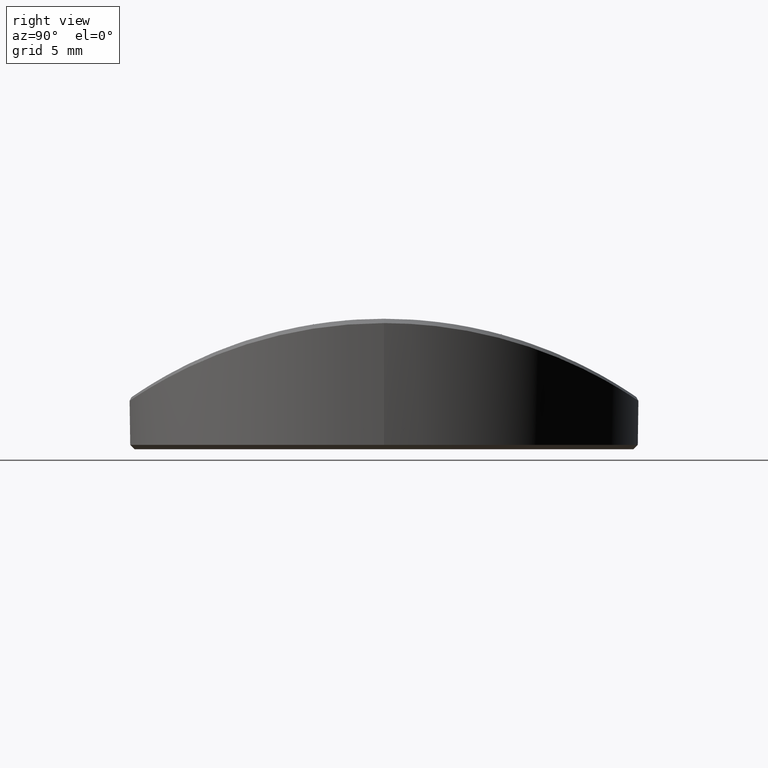
[diagram: clean part render]
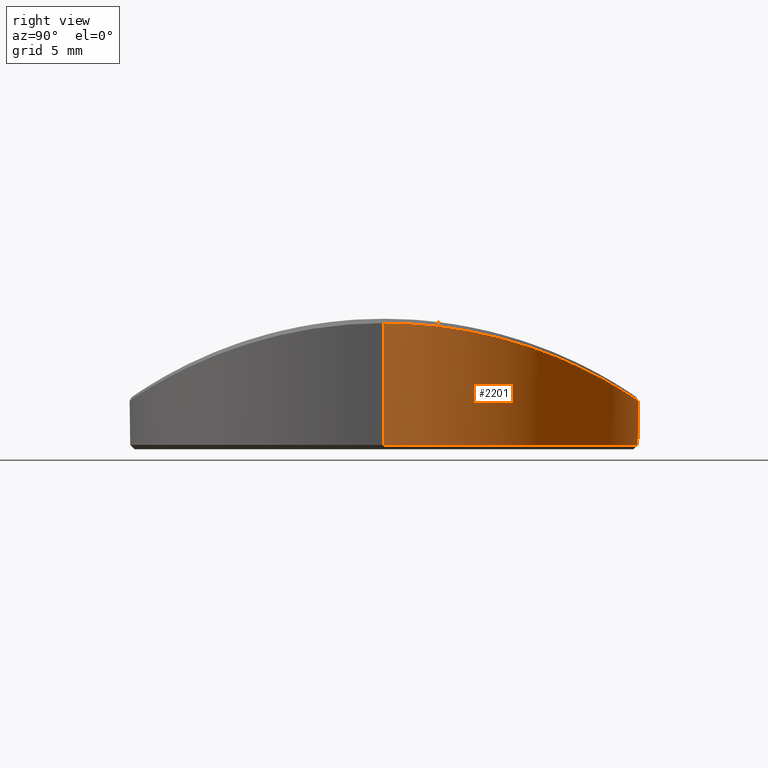
[diagram: same view with one face highlighted and labeled with its STEP entity id]
A machine part, right view. The second image highlights one B-rep face of the part: STEP entity #2201.
In plain terms, the highlighted cylindrical surface (partial cylindrical patch) has radius 11.7 mm, axis along (-0, -0, -1).
Its self-contained STEP definition (entity closure, byte-faithful):
#5 = CARTESIAN_POINT ( 'NONE',  ( -8.437295809703018179, 8.105813647636338715, 4.169886736704881081 ) ) ;
#14 = CARTESIAN_POINT ( 'NONE',  ( 11.70000000017588881, -8.827351375119261474E-15, 5.800000004118521346 ) ) ;
#15 = CARTESIAN_POINT ( 'NONE',  ( 7.391314266196640226, 9.069661574431133744, 3.736149257392828105 ) ) ;
#18 = CARTESIAN_POINT ( 'NONE',  ( -8.811416828885388242, 7.697474801508759512, 4.336247948673900510 ) ) ;
#27 = CARTESIAN_POINT ( 'NONE',  ( 8.595766624554746826, 7.937480853387239854, 4.239668571529119134 ) ) ;
#31 = CARTESIAN_POINT ( 'NONE',  ( -8.067350904276150203, 8.473951840150627746, 4.011131081155237865 ) ) ;
#38 = CARTESIAN_POINT ( 'NONE',  ( 8.871003987402296787, 7.628729625308857010, 4.363270365025374353 ) ) ;
#41 = CARTESIAN_POINT ( 'NONE',  ( -8.903249473102112788, 7.591501052401641303, 4.377897320468395748 ) ) ;
#51 = CARTESIAN_POINT ( 'NONE',  ( 10.75608270151544943, 4.604245608648823485, 5.288786275555946936 ) ) ;
#54 = CARTESIAN_POINT ( 'NONE',  ( -0.4047084745617032797, 11.69467009091063936, 2.228792067743787353 ) ) ;
#67 = CARTESIAN_POINT ( 'NONE',  ( -4.322901464960398954, 10.87282855060728792, 2.756577011603998706 ) ) ;
#73 = VERTEX_POINT ( 'NONE', #105 ) ;
#81 = CARTESIAN_POINT ( 'NONE',  ( 9.825521175242240446, 6.353307963082038157, 4.815160961565031705 ) ) ;
#84 = CARTESIAN_POINT ( 'NONE',  ( 0.7734024039273988960, 11.67481784300663250, 2.242194206971365400 ) ) ;
#97 = CARTESIAN_POINT ( 'NONE',  ( 10.25634040642596290, 5.630257963537689925, 5.030572472921992500 ) ) ;
#100 = CARTESIAN_POINT ( 'NONE',  ( -6.445678057845515951, 9.764878931143980978, 3.385743854296285882 ) ) ;
#105 = CARTESIAN_POINT ( 'NONE',  ( 11.70000000017588881, -8.827351375119261474E-15, 5.800000004118521346 ) ) ;
#113 = CARTESIAN_POINT ( 'NONE',  ( 11.69999923773278816, 0.004223393435379727695, 5.799999575238697247 ) ) ;
#116 = CARTESIAN_POINT ( 'NONE',  ( -0.7009116350739843515, 11.67940483290879961, 2.239098863146238294 ) ) ;
#120 = ORIENTED_EDGE ( 'NONE', *, *, #1470, .T. ) ;
#130 = CARTESIAN_POINT ( 'NONE',  ( 6.845632872535812652, 9.488490152317901050, 3.528957766048008260 ) ) ;
#133 = CARTESIAN_POINT ( 'NONE',  ( -11.55320896597652158, 1.850049640979224863, 5.718550975402673764 ) ) ;
#143 = EDGE_CURVE ( 'NONE', #1173, #2769, #1637, .T. ) ;
#146 = CARTESIAN_POINT ( 'NONE',  ( 6.672438390234765038, 9.611314786778489605, 3.465992427069106263 ) ) ;
#150 = CARTESIAN_POINT ( 'NONE',  ( -10.85483267209390412, 4.366342251859033574, 5.340851410519626086 ) ) ;
#160 = CARTESIAN_POINT ( 'NONE',  ( 6.944644960350445650, 9.416053348222719777, 3.565592969037962856 ) ) ;
#164 = CARTESIAN_POINT ( 'NONE',  ( -11.53751249738859030, 1.945564280799364498, 5.709881163334335596 ) ) ;
#175 = CARTESIAN_POINT ( 'NONE',  ( 2.788338590534663375, 11.36299058374541815, 2.448384307366771040 ) ) ;
#179 = CARTESIAN_POINT ( 'NONE',  ( -11.23423881802068536, 3.268682908520992747, 5.544007049067360526 ) ) ;
#188 = CARTESIAN_POINT ( 'NONE',  ( 4.436140032066499650, 10.82641438985365490, 2.784691819308217742 ) ) ;
#192 = CARTESIAN_POINT ( 'NONE',  ( -10.50515970036339475, 5.151732105244779092, 5.158004000232310204 ) ) ;
#202 = CARTESIAN_POINT ( 'NONE',  ( 9.270229011128835239, 7.138385599322517372, 4.547972795907230470 ) ) ;
#206 = CARTESIAN_POINT ( 'NONE',  ( -7.161957271779430201, 9.251950370400873425, 3.647420432729198136 ) ) ;
#216 = CARTESIAN_POINT ( 'NONE',  ( 8.146773343347277319, 8.397847181459182409, 4.044691281994895249 ) ) ;
#220 = CARTESIAN_POINT ( 'NONE',  ( -7.020802207457241373, 9.359404314422347326, 3.594033707712816827 ) ) ;
#229 = CARTESIAN_POINT ( 'NONE',  ( 9.351880680054954098, 7.030854562055937507, 4.586548418731823062 ) ) ;
#233 = CARTESIAN_POINT ( 'NONE',  ( -7.003801795904206706, 9.372132796794611309, 3.587661807223603283 ) ) ;
#241 = CARTESIAN_POINT ( 'NONE',  ( 7.406239147919974286, 9.057464503034392322, 3.742006341386883594 ) ) ;
#244 = CARTESIAN_POINT ( 'NONE',  ( -8.126638929876154549, 8.417173532497844946, 4.036176812756796295 ) ) ;
#252 = CARTESIAN_POINT ( 'NONE',  ( 8.778253543889205091, 7.735707755692856402, 4.321212088507113691 ) ) ;
#256 = CARTESIAN_POINT ( 'NONE',  ( -8.266817809071042689, 8.279477643434580258, 4.096027327048655131 ) ) ;
#267 = CARTESIAN_POINT ( 'NONE',  ( 10.92061163145027258, 4.199113307288460106, 5.375721124577034438 ) ) ;
#270 = CARTESIAN_POINT ( 'NONE',  ( -4.588929450128286014, 10.76253990005226058, 2.823220465470813512 ) ) ;
#284 = CARTESIAN_POINT ( 'NONE',  ( -3.921625560571120328, 11.02363296461624387, 2.663773768902030437 ) ) ;
#300 = CARTESIAN_POINT ( 'NONE',  ( -2.810797438888655186, 11.35777201223054966, 2.451784330345339491 ) ) ;
#301 = AXIS2_PLACEMENT_3D ( 'NONE', #679, #666, #2176 ) ;
#317 = CARTESIAN_POINT ( 'NONE',  ( -4.631589592152873358, 10.74425039024746376, 2.834195254485562643 ) ) ;
#328 = CARTESIAN_POINT ( 'NONE',  ( 10.95474868911250610, 4.109232547666515245, 5.393875853870989445 ) ) ;
#331 = CARTESIAN_POINT ( 'NONE',  ( -4.568791908505191124, 10.77110634630383501, 2.818071513812807627 ) ) ;
#345 = CARTESIAN_POINT ( 'NONE',  ( 2.409254423208509355, 11.44966081898116173, 2.391896204229036371 ) ) ;
#362 = CARTESIAN_POINT ( 'NONE',  ( 6.453355284240631207, 9.759367646331208235, 3.388560019999049988 ) ) ;
#366 = CARTESIAN_POINT ( 'NONE',  ( -9.708177158836667431, 6.530070431543766318, 4.757787904795486966 ) ) ;
#375 = CARTESIAN_POINT ( 'NONE',  ( 1.355346348059107253, 11.62163862223932576, 2.277937139337957717 ) ) ;
#379 = CARTESIAN_POINT ( 'NONE',  ( -11.19182612422929957, 3.411060976324800098, 5.521056363503888065 ) ) ;
#390 = CARTESIAN_POINT ( 'NONE',  ( 3.900488937701085401, 11.03079962807516168, 2.659287235417948203 ) ) ;
#404 = CARTESIAN_POINT ( 'NONE',  ( 4.504446885436137471, 10.79817091513654148, 2.801766372035925823 ) ) ;
#408 = CARTESIAN_POINT ( 'NONE',  ( -10.08941489876747966, 5.924334256567927781, 4.946316006905484564 ) ) ;
#418 = CARTESIAN_POINT ( 'NONE',  ( 8.617437620087367023, 7.913904287952197691, 4.249296553684698274 ) ) ;
#421 = CARTESIAN_POINT ( 'NONE',  ( -11.69262934004027699, 0.4897705099582834176, 5.795882860269441217 ) ) ;
#431 = CARTESIAN_POINT ( 'NONE',  ( 8.035757617239099204, 8.503923723159818593, 3.997837988349387306 ) ) ;
#435 = CARTESIAN_POINT ( 'NONE',  ( -8.764448470914807388, 7.751034283487044263, 4.315031875007026230 ) ) ;
#445 = CARTESIAN_POINT ( 'NONE',  ( 7.806399055500618189, 8.714978648358702173, 3.902622657902390380 ) ) ;
#446 = CARTESIAN_POINT ( 'NONE',  ( 0.000000000000000000, 0.000000000000000000, 0.2000000000000040079 ) ) ;
#448 = CARTESIAN_POINT ( 'NONE',  ( -7.460538230643770419, 9.012800396903546840, 3.763385659853688558 ) ) ;
#456 = CARTESIAN_POINT ( 'NONE',  ( 7.695070823815899352, 8.813515820135933154, 3.857212693318103902 ) ) ;
#459 = CARTESIAN_POINT ( 'NONE',  ( -8.294963284226607669, 8.251295069900724144, 4.108138687436419190 ) ) ;
#467 = CARTESIAN_POINT ( 'NONE',  ( 7.356748272642588127, 9.097767782024924088, 3.722619098498599399 ) ) ;
#470 = CARTESIAN_POINT ( 'NONE',  ( -7.669478537185914213, 8.835679707680185402, 3.846878239858557258 ) ) ;
#481 = CARTESIAN_POINT ( 'NONE',  ( 9.973539682757753155, 6.117110162272503260, 4.888453276190439567 ) ) ;
#484 = CARTESIAN_POINT ( 'NONE',  ( -7.440010933104962199, 9.029743373767388448, 3.755289356782300914 ) ) ;
#495 = B_SPLINE_CURVE_WITH_KNOTS ( 'NONE', 3,
 ( #2867, #2503, #1303, #946, #14 ),
 .UNSPECIFIED., .F., .F.,
 ( 4, 1, 4 ),
 ( 0.5000000000000000000, 0.5000280797606866390, 0.5000561595213733890 ),
 .UNSPECIFIED. ) ;
#497 = CARTESIAN_POINT ( 'NONE',  ( 11.69992854439777830, 0.2000640079519777348, 5.799959732185003602 ) ) ;
#500 = CARTESIAN_POINT ( 'NONE',  ( -5.480556083292717595, 10.33744929173269789, 3.071837601252430439 ) ) ;
#515 = CARTESIAN_POINT ( 'NONE',  ( -0.9926124398409040817, 11.65822952827787873, 2.253368222857024872 ) ) ;
#527 = CARTESIAN_POINT ( 'NONE',  ( 11.65969103448274069, 0.9903645039088576629, 5.777558847979133105 ) ) ;
#530 = CARTESIAN_POINT ( 'NONE',  ( -4.695693393251231029, 10.71654203748402168, 2.850793150998589542 ) ) ;
#531 = VECTOR ( 'NONE', #2562, 1000.000000000000000 ) ;
#543 = CARTESIAN_POINT ( 'NONE',  ( 11.63456937287197235, 1.236627091008876134, 5.763608554312402710 ) ) ;
#546 = CARTESIAN_POINT ( 'NONE',  ( -5.208024853022096501, 10.47712841202144674, 2.991612489479757109 ) ) ;
#560 = CARTESIAN_POINT ( 'NONE',  ( 6.787419026992882465, 9.530117756487658909, 3.507692615758594368 ) ) ;
#577 = CARTESIAN_POINT ( 'NONE',  ( 5.402927872072071480, 10.37797791838683992, 3.048678460460809703 ) ) ;
#581 = CARTESIAN_POINT ( 'NONE',  ( -10.56584188666544577, 5.025451843324445278, 5.189444227816004229 ) ) ;
#592 = CARTESIAN_POINT ( 'NONE',  ( -11.69999999999999929, -4.116580123655899648E-16, 5.800000000000006040 ) ) ;
#594 = CARTESIAN_POINT ( 'NONE',  ( 6.484032630685845788, 9.738966707563404768, 3.399297538185179768 ) ) ;
#598 = CARTESIAN_POINT ( 'NONE',  ( -9.722549701507533726, 6.508656839289058027, 4.764796760907220374 ) ) ;
#605 = EDGE_CURVE ( 'NONE', #1173, #2738, #2309, .T. ) ;
#610 = CARTESIAN_POINT ( 'NONE',  ( 1.548245464982917152, 11.59751628450169036, 2.294069999364284129 ) ) ;
#614 = CARTESIAN_POINT ( 'NONE',  ( -9.228378572051527229, 7.193230879019988144, 4.528222515602392306 ) ) ;
#625 = CARTESIAN_POINT ( 'NONE',  ( 4.892626480855770232, 10.62808808040251840, 2.903326570361237202 ) ) ;
#637 = CARTESIAN_POINT ( 'NONE',  ( 8.713565908659134607, 7.808576280058143304, 4.292112316666372607 ) ) ;
#641 = CARTESIAN_POINT ( 'NONE',  ( -11.00806832785234946, 3.964175444383091218, 5.422312561962280952 ) ) ;
#652 = CARTESIAN_POINT ( 'NONE',  ( 9.508905093193661173, 6.818070353199796152, 4.661318571413867851 ) ) ;
#656 = CARTESIAN_POINT ( 'NONE',  ( -7.650141490518982401, 8.852419974506370082, 3.839071922443579421 ) ) ;
#666 = DIRECTION ( 'NONE',  ( -0.000000000000000000, -0.000000000000000000, -1.000000000000000000 ) ) ;
#667 = CARTESIAN_POINT ( 'NONE',  ( 9.641685340583119768, 6.627852450720684629, 4.725462301309082847 ) ) ;
#670 = CARTESIAN_POINT ( 'NONE',  ( -6.906580619804439714, 9.444532261490108382, 3.551331910339256215 ) ) ;
#679 = CARTESIAN_POINT ( 'NONE',  ( 0.000000000000000000, 0.000000000000000000, 7.000000000000000000 ) ) ;
#680 = CARTESIAN_POINT ( 'NONE',  ( 8.053188623122768064, 8.487412068059622783, 4.005167698002450649 ) ) ;
#683 = CARTESIAN_POINT ( 'NONE',  ( -6.563611717426702796, 9.685510996470121370, 3.427321193746572625 ) ) ;
#691 = CARTESIAN_POINT ( 'NONE',  ( 8.543815683065465905, 7.993536172374250626, 4.216656562147580445 ) ) ;
#694 = CARTESIAN_POINT ( 'NONE',  ( -8.593862355560307975, 7.939926357227072629, 4.238768632949727611 ) ) ;
#703 = CARTESIAN_POINT ( 'NONE',  ( 10.32540166903116940, 5.503214828355364574, 5.065695194710200688 ) ) ;
#706 = CARTESIAN_POINT ( 'NONE',  ( -8.072021505694353394, 8.469502890578963772, 4.013099648227028915 ) ) ;
#716 = CARTESIAN_POINT ( 'NONE',  ( 11.58078687785783778, 1.668794269489522586, 5.733791245373150325 ) ) ;
#720 = CARTESIAN_POINT ( 'NONE',  ( -0.2063600673289366638, 11.69982653356954749, 2.225299460209607449 ) ) ;
#733 = CARTESIAN_POINT ( 'NONE',  ( 9.912840989924795565, 6.215250530089734049, 4.858315213439015068 ) ) ;
#736 = CARTESIAN_POINT ( 'NONE',  ( -2.716240413297336787, 11.38074716562837985, 2.436873901548015198 ) ) ;
#749 = CARTESIAN_POINT ( 'NONE',  ( 11.39179404242798554, 2.670804865314982735, 5.629786965502521667 ) ) ;
#752 = CARTESIAN_POINT ( 'NONE',  ( -3.000294605165270134, 11.30919093509729123, 2.483162763173075049 ) ) ;
#763 = CARTESIAN_POINT ( 'NONE',  ( 11.50233532928827351, 2.150552551754274067, 5.690464253964929497 ) ) ;
#766 = CARTESIAN_POINT ( 'NONE',  ( -2.435384667807076742, 11.44414464092218076, 2.395511737445027212 ) ) ;
#782 = CARTESIAN_POINT ( 'NONE',  ( -3.555784032613328094, 11.14668973506983463, 2.586715727066600579 ) ) ;
#797 = CARTESIAN_POINT ( 'NONE',  ( 6.123787754858602383, 9.969820440170011011, 3.276055774558648714 ) ) ;
#801 = CARTESIAN_POINT ( 'NONE',  ( -11.69999999999999929, -4.116580123655899648E-16, 5.800000000000006040 ) ) ;
#814 = CARTESIAN_POINT ( 'NONE',  ( 6.914763286594987513, 9.438067278563325502, 3.554493455955499925 ) ) ;
#818 = CARTESIAN_POINT ( 'NONE',  ( -10.95925397923100419, 4.098020653531777135, 5.396262014012741304 ) ) ;
#819 = CIRCLE ( 'NONE', #2163, 11.69999999999999929 ) ;
#820 = EDGE_CURVE ( 'NONE', #1391, #2738, #819, .T. ) ;
#825 = CARTESIAN_POINT ( 'NONE',  ( -11.69999999999999929, 0.000000000000000000, 0.2000000000000040079 ) ) ;
#831 = CARTESIAN_POINT ( 'NONE',  ( 7.232136833040457624, 9.197194090458108207, 3.674312371537584276 ) ) ;
#835 = CARTESIAN_POINT ( 'NONE',  ( -11.38497188910592683, 2.703733674817456745, 5.626028400389095019 ) ) ;
#845 = CARTESIAN_POINT ( 'NONE',  ( 4.611279217602159086, 10.75335732117028265, 2.828779437139125719 ) ) ;
#849 = CARTESIAN_POINT ( 'NONE',  ( -10.02783700179848125, 6.027691585964833010, 4.915512983854325668 ) ) ;
#859 = CARTESIAN_POINT ( 'NONE',  ( 6.504521877259023199, 9.725294177303116072, 3.406483996197020137 ) ) ;
#863 = CARTESIAN_POINT ( 'NONE',  ( -9.880461282696089143, 6.267562336623395680, 4.842235738250606936 ) ) ;
#875 = CARTESIAN_POINT ( 'NONE',  ( 7.635478506322758818, 8.865070686247202403, 3.833162221434800010 ) ) ;
#879 = CARTESIAN_POINT ( 'NONE',  ( -8.387403186092988960, 8.157556774126591748, 4.148116785895747505 ) ) ;
#888 = CARTESIAN_POINT ( 'NONE',  ( 11.69999999999999929, 1.432836755002403087E-15, 0.2000000000000040079 ) ) ;
#889 = CARTESIAN_POINT ( 'NONE',  ( 7.665114657149041832, 8.839518403660580503, 3.845102649432010633 ) ) ;
#892 = CARTESIAN_POINT ( 'NONE',  ( -7.448187334915217228, 9.023000249630161562, 3.758512923881538015 ) ) ;
#900 = CARTESIAN_POINT ( 'NONE',  ( 7.416213570248218367, 9.049299299966641286, 3.745924051709131675 ) ) ;
#903 = CARTESIAN_POINT ( 'NONE',  ( -8.186906514115094069, 8.358733337513541528, 4.061771170216017524 ) ) ;
#912 = CARTESIAN_POINT ( 'NONE',  ( 8.631753946264662858, 7.898286904519831175, 4.255663140104109843 ) ) ;
#915 = CARTESIAN_POINT ( 'NONE',  ( -7.489958746557427105, 8.988401965357445178, 3.775017074385101701 ) ) ;
#922 = CARTESIAN_POINT ( 'NONE',  ( 8.967340082558539649, 7.515164156866100065, 4.407275270453204108 ) ) ;
#925 = CARTESIAN_POINT ( 'NONE',  ( -7.657985509240256228, 8.845636719716654994, 3.842236848949549977 ) ) ;
#936 = CARTESIAN_POINT ( 'NONE',  ( 11.11594439595478612, 3.651737672361275333, 5.480128790417827744 ) ) ;
#939 = CARTESIAN_POINT ( 'NONE',  ( -3.511885452550440156, 11.16060356911311580, 2.577930557645532694 ) ) ;
#942 = ORIENTED_EDGE ( 'NONE', *, *, #605, .F. ) ;
#946 = CARTESIAN_POINT ( 'NONE',  ( 11.69999999999999929, 0.0007039056251922846648, 5.800000007290393889 ) ) ;
#955 = CARTESIAN_POINT ( 'NONE',  ( -4.057749930686357587, 10.97384241744188849, 2.694556794910074604 ) ) ;
#968 = CARTESIAN_POINT ( 'NONE',  ( 10.45609715831335151, 5.249975287783821720, 5.132717729621933067 ) ) ;
#971 = CARTESIAN_POINT ( 'NONE',  ( 0.9680323512653116191, 11.66029314866012712, 2.251979557675667376 ) ) ;
#983 = CARTESIAN_POINT ( 'NONE',  ( 10.64194944926327580, 4.863628052474124885, 5.228992919197223976 ) ) ;
#986 = CARTESIAN_POINT ( 'NONE',  ( -3.646887674991559525, 11.11721648716501853, 2.605273395784982959 ) ) ;
#1002 = CARTESIAN_POINT ( 'NONE',  ( -3.783838795004185851, 11.07198438895571435, 2.633675372254937308 ) ) ;
#1014 = CARTESIAN_POINT ( 'NONE',  ( 6.976349736774202448, 9.392584959977156700, 3.577400902368021551 ) ) ;
#1017 = CARTESIAN_POINT ( 'NONE',  ( -11.59664455328882759, 1.563687771617892741, 5.742567416699355221 ) ) ;
#1028 = CARTESIAN_POINT ( 'NONE',  ( 6.027500292435728824, 10.02794825621990960, 3.244340367662625901 ) ) ;
#1031 = CARTESIAN_POINT ( 'NONE',  ( -10.74437937334442239, 4.632187807707755844, 5.282621679357544231 ) ) ;
#1041 = CARTESIAN_POINT ( 'NONE',  ( 6.964621941577870068, 9.401286906205406524, 3.573027232421659871 ) ) ;
#1044 = CARTESIAN_POINT ( 'NONE',  ( -9.424064973634118658, 6.933800431917338969, 4.620845749715783768 ) ) ;
#1056 = CARTESIAN_POINT ( 'NONE',  ( 2.976416690007831267, 11.31548209338562039, 2.479108278889205152 ) ) ;
#1061 = CARTESIAN_POINT ( 'NONE',  ( -10.17335417474703618, 5.780023458317037566, 4.988499098747053218 ) ) ;
#1072 = CARTESIAN_POINT ( 'NONE',  ( 4.212999718353396261, 10.91588883497280804, 2.730271768705976765 ) ) ;
#1075 = CARTESIAN_POINT ( 'NONE',  ( -11.65931783650876596, 0.9797771570936026908, 5.777354420903800580 ) ) ;
#1087 = CARTESIAN_POINT ( 'NONE',  ( 7.606504156267175354, 8.889959125160292075, 3.821509420351394404 ) ) ;
#1091 = CARTESIAN_POINT ( 'NONE',  ( -6.997022956076887290, 9.377197167224911922, 3.585124094566436437 ) ) ;
#1101 = CARTESIAN_POINT ( 'NONE',  ( 8.241828346777534620, 8.304353865963619796, 4.085299206430300423 ) ) ;
#1105 = CARTESIAN_POINT ( 'NONE',  ( -8.707763179964867817, 7.814468150370736055, 4.289594860465490989 ) ) ;
#1114 = CARTESIAN_POINT ( 'NONE',  ( 9.679601189014878315, 6.572358880026018646, 4.743874746187829672 ) ) ;
#1118 = CARTESIAN_POINT ( 'NONE',  ( -8.233871752934241783, 8.312344259755642284, 4.081871244514818642 ) ) ;
#1126 = CARTESIAN_POINT ( 'NONE',  ( 7.747596563882360066, 8.767285298605859367, 3.878582406062305754 ) ) ;
#1129 = CARTESIAN_POINT ( 'NONE',  ( -8.656792517466131542, 7.870835478757974180, 4.266817801098097718 ) ) ;
#1138 = CARTESIAN_POINT ( 'NONE',  ( 8.916308901728422498, 7.575821312918468386, 4.383901657973797050 ) ) ;
#1141 = CARTESIAN_POINT ( 'NONE',  ( -7.811687318475307507, 8.710415251061576214, 3.904755392203628439 ) ) ;
#1151 = CARTESIAN_POINT ( 'NONE',  ( 10.70002590665148290, 4.733043322667927377, 5.259381508529320293 ) ) ;
#1154 = CARTESIAN_POINT ( 'NONE',  ( -1.957511618327141045, 11.53549053273443370, 2.335333223702981353 ) ) ;
#1166 = CARTESIAN_POINT ( 'NONE',  ( 9.747063003659540925, 6.472561287655251405, 4.776718043791056800 ) ) ;
#1169 = CARTESIAN_POINT ( 'NONE',  ( -1.285895186697891823, 11.62953708243336948, 2.272641874638381854 ) ) ;
#1173 = VERTEX_POINT ( 'NONE', #592 ) ;
#1184 = CARTESIAN_POINT ( 'NONE',  ( -5.104611705923163711, 10.52774749050692904, 2.962174973128439248 ) ) ;
#1196 = CARTESIAN_POINT ( 'NONE',  ( 10.39231587608688834, 5.376379535854662883, 5.099897085451354783 ) ) ;
#1199 = CARTESIAN_POINT ( 'NONE',  ( -3.277622359066451274, 11.23194478064998592, 2.532664955277336372 ) ) ;
#1216 = CARTESIAN_POINT ( 'NONE',  ( -1.380789895906509912, 11.61864398168201440, 2.279943074903545863 ) ) ;
#1229 = CARTESIAN_POINT ( 'NONE',  ( 4.080315754534490580, 10.96584586457942123, 2.699526142501031512 ) ) ;
#1245 = CARTESIAN_POINT ( 'NONE',  ( 2.837045417729481933, 11.35092380061253436, 2.456201237538825577 ) ) ;
#1249 = CARTESIAN_POINT ( 'NONE',  ( -11.27501345926088661, 3.127433622065749930, 5.566109768344646547 ) ) ;
#1260 = CARTESIAN_POINT ( 'NONE',  ( 1.836701677884153172, 11.55533616238539452, 2.322163106945850597 ) ) ;
#1264 = CARTESIAN_POINT ( 'NONE',  ( -10.44243185606620372, 5.278396024196737812, 5.125632784463493685 ) ) ;
#1275 = CARTESIAN_POINT ( 'NONE',  ( 4.369024480681749090, 10.85383336951264610, 2.768075699147222402 ) ) ;
#1280 = CARTESIAN_POINT ( 'NONE',  ( -9.071634043592574415, 7.388943653138802858, 4.455317635933551124 ) ) ;
#1289 = CARTESIAN_POINT ( 'NONE',  ( 1.646317143849922005, 11.58399355754050397, 2.303094216432751029 ) ) ;
#1293 = CARTESIAN_POINT ( 'NONE',  ( -9.954816957952690615, 6.148184813249748082, 4.879108175042095041 ) ) ;
#1294 = EDGE_CURVE ( 'NONE', #73, #1391, #1476, .T. ) ;
#1303 = CARTESIAN_POINT ( 'NONE',  ( 11.69999987295304145, 0.002111710171583529652, 5.799999933859105283 ) ) ;
#1304 = CARTESIAN_POINT ( 'NONE',  ( 9.009344139924630568, 7.464708241338949612, 4.426578991423186338 ) ) ;
#1308 = CARTESIAN_POINT ( 'NONE',  ( -11.62130096234511001, 1.368564481225629237, 5.756240753207517713 ) ) ;
#1318 = CARTESIAN_POINT ( 'NONE',  ( 7.623340922691512311, 8.875513758307086221, 3.828276916803148300 ) ) ;
#1322 = CARTESIAN_POINT ( 'NONE',  ( -8.040671269837526225, 8.499325024493536773, 3.999893722740778923 ) ) ;
#1333 = CARTESIAN_POINT ( 'NONE',  ( 9.667553967383645031, 6.590062564427164205, 4.738018735413844773 ) ) ;
#1334 = DIRECTION ( 'NONE',  ( -0.000000000000000000, -0.000000000000000000, 1.000000000000000000 ) ) ;
#1336 = CARTESIAN_POINT ( 'NONE',  ( -7.902948264824905422, 8.627699654662013273, 3.942388157955716732 ) ) ;
#1344 = CARTESIAN_POINT ( 'NONE',  ( 7.897895145325359856, 8.632346275613652864, 3.940290691774049225 ) ) ;
#1347 = CARTESIAN_POINT ( 'NONE',  ( -8.272298193536929745, 8.274002896120119743, 4.098383407775683551 ) ) ;
#1355 = CARTESIAN_POINT ( 'NONE',  ( 7.573383580530052228, 8.918235533695145989, 3.808228298151035585 ) ) ;
#1358 = CARTESIAN_POINT ( 'NONE',  ( -8.683059561435078066, 7.841851115974667330, 4.278546512391223189 ) ) ;
#1368 = CARTESIAN_POINT ( 'NONE',  ( 10.49793179488253969, 5.165814198790312339, 5.154291215386632707 ) ) ;
#1371 = CARTESIAN_POINT ( 'NONE',  ( -4.036851736020143910, 10.98154952567645637, 2.689798221761907193 ) ) ;
#1383 = CARTESIAN_POINT ( 'NONE',  ( 11.61844901387053852, 1.379851230669305151, 5.754662120119490076 ) ) ;
#1386 = CARTESIAN_POINT ( 'NONE',  ( -4.101786132005921459, 10.95745875785603474, 2.704657366857141643 ) ) ;
#1391 = VERTEX_POINT ( 'NONE', #888 ) ;
#1399 = CARTESIAN_POINT ( 'NONE',  ( 11.28545548832128453, 3.092896074746356749, 5.571765326092328330 ) ) ;
#1402 = CARTESIAN_POINT ( 'NONE',  ( 0.1861975177633851397, 11.70016477992445481, 2.225074512785103931 ) ) ;
#1414 = CARTESIAN_POINT ( 'NONE',  ( 9.984917501056139955, 6.098524479224241013, 4.894114444986502832 ) ) ;
#1417 = CARTESIAN_POINT ( 'NONE',  ( -3.091115791526911849, 11.28469738396186806, 2.498914960283541653 ) ) ;
#1432 = CARTESIAN_POINT ( 'NONE',  ( -3.371174293762098984, 11.20423266966645137, 2.550309479930723544 ) ) ;
#1445 = CARTESIAN_POINT ( 'NONE',  ( 6.515986449659396662, 9.717614948062518465, 3.410514311279485344 ) ) ;
#1447 = CARTESIAN_POINT ( 'NONE',  ( -11.69999999999999929, 0.000000000000000000, 7.000000000000000000 ) ) ;
#1461 = CARTESIAN_POINT ( 'NONE',  ( 5.509749921474593748, 10.32149419425774362, 3.080831792035213290 ) ) ;
#1465 = CARTESIAN_POINT ( 'NONE',  ( -10.01479789943800114, 6.049327058126039880, 4.909005070025171946 ) ) ;
#1470 = EDGE_CURVE ( 'NONE', #2769, #73, #495, .T. ) ;
#1476 = LINE ( 'NONE', #2100, #1968 ) ;
#1478 = CARTESIAN_POINT ( 'NONE',  ( 3.350830150178979672, 11.21001035431830850, 2.546611158532146035 ) ) ;
#1482 = CARTESIAN_POINT ( 'NONE',  ( -9.644136438072660411, 6.624878095204641326, 4.726604843895137797 ) ) ;
#1493 = CARTESIAN_POINT ( 'NONE',  ( 3.116323160083904309, 11.27808046090890670, 2.503182126792662832 ) ) ;
#1497 = CARTESIAN_POINT ( 'NONE',  ( -11.10473175624245812, 3.686657174355808753, 5.474087252952918092 ) ) ;
#1508 = CARTESIAN_POINT ( 'NONE',  ( 5.001916114778904188, 10.57692865270743177, 2.933413911899584559 ) ) ;
#1514 = CARTESIAN_POINT ( 'NONE',  ( -11.31292297542364622, 2.986170445093572656, 5.586737981670992781 ) ) ;
#1522 = CARTESIAN_POINT ( 'NONE',  ( 7.458411273928816421, 9.014645649998858090, 3.762525140023252224 ) ) ;
#1526 = CARTESIAN_POINT ( 'NONE',  ( -11.67412945687133430, 0.7838093610712626447, 5.785589299486348480 ) ) ;
#1535 = CYLINDRICAL_SURFACE ( 'NONE', #301, 11.69999999999999929 ) ;
#1536 = CARTESIAN_POINT ( 'NONE',  ( 8.230544129703018186, 8.315548209586582473, 4.080461571610736193 ) ) ;
#1540 = CARTESIAN_POINT ( 'NONE',  ( -7.607697662271620587, 8.889074523938493400, 3.821958003545505633 ) ) ;
#1549 = CARTESIAN_POINT ( 'NONE',  ( 8.013104182319745306, 8.525301159182502531, 3.988327465171297881 ) ) ;
#1552 = CARTESIAN_POINT ( 'NONE',  ( -6.827954496796055928, 9.501465990414660112, 3.522401565651880784 ) ) ;
#1560 = CARTESIAN_POINT ( 'NONE',  ( 7.422201349144766702, 9.044387997038503713, 3.748278256457878044 ) ) ;
#1563 = CARTESIAN_POINT ( 'NONE',  ( -6.545309867968107653, 9.697888469773412012, 3.420849774852102954 ) ) ;
#1571 = CARTESIAN_POINT ( 'NONE',  ( 7.509375613598045618, 8.972354009988318779, 3.782681536562909397 ) ) ;
#1574 = CARTESIAN_POINT ( 'NONE',  ( -8.095114707483357819, 8.447449263609753345, 4.022843566332863219 ) ) ;
#1583 = CARTESIAN_POINT ( 'NONE',  ( 10.73808023316732374, 4.646061386090966749, 5.279330990749043551 ) ) ;
#1586 = CARTESIAN_POINT ( 'NONE',  ( -7.551187936373562337, 8.937188689582351131, 3.799326692500168967 ) ) ;
#1597 = CARTESIAN_POINT ( 'NONE',  ( 11.67476008908739438, 0.7930928095531376565, 5.785939045628571087 ) ) ;
#1600 = CARTESIAN_POINT ( 'NONE',  ( -6.325281247252198646, 9.843579506031312931, 3.344034060209323922 ) ) ;
#1612 = CARTESIAN_POINT ( 'NONE',  ( 11.60099359911898453, 1.524280977434490092, 5.744980406290229880 ) ) ;
#1615 = CARTESIAN_POINT ( 'NONE',  ( -6.130153275733176699, 9.965527110340289596, 3.278312176274030154 ) ) ;
#1628 = CARTESIAN_POINT ( 'NONE',  ( 11.62947723216100115, 1.283591139474664189, 5.760781607763924228 ) ) ;
#1631 = CARTESIAN_POINT ( 'NONE',  ( -4.976185350938176377, 10.58947348893274487, 2.926110193994413855 ) ) ;
#1637 = B_SPLINE_CURVE_WITH_KNOTS ( 'NONE', 3,
 ( #801, #2181, #421, #1526, #1075, #2843, #1308, #1017, #133, #164, #1681, #2626, #2136, #835, #1514, #1249, #179, #1916, #379, #2401, #1497, #1901, #1957, #641, #818, #2799, #150, #1698, #2579, #1031, #2640, #1727, #2415, #581, #192, #1264, #2857, #2815, #2596, #1712, #1061, #408, #2167, #849, #1465, #1293, #863, #2356, #1741, #598, #366, #1482, #2372, #2152, #1044, #1930, #2829, #2611, #614, #2386, #1280, #2480, #2705, #2000, #2234, #41, #18, #435, #1105, #1358, #1971, #1129, #694, #1793, #5, #879, #2245, #459, #2012, #1347, #256, #1118, #903, #244, #1574, #2872, #706, #31, #1803, #1322, #2023, #2466, #1336, #1141, #1756, #2655, #2693, #470, #925, #1986, #656, #2211, #1540, #1586, #915, #448, #892, #484, #2667, #2429, #2195, #206, #1769, #2223, #220, #233, #1091, #670, #1552, #2443, #1781, #2681, #683, #1563, #2455, #100, #1600, #2085, #1615, #2527, #2259, #1833, #2052, #1883, #2764, #2733, #2494, #500, #1817, #546, #2273, #1184, #2102, #1631, #1866, #530, #317, #270, #331, #2780, #67, #2560, #1386, #955, #1371, #284, #1002, #986, #782, #939, #1432, #1199, #1417, #752, #300, #736, #2511, #766, #2306, #1648, #1154, #2545, #2322, #2719, #1216, #1169, #2037, #515, #1662, #116, #54, #720, #1402, #2290, #2070, #84, #971, #1850, #2749, #375, #610, #1289, #1260, #1678, #2352, #2622, #345, #2382, #1941, #175, #1245, #1056, #1493, #2397, #1478, #2811, #1708, #2368, #2148, #390, #2839, #1229, #1072, #1275, #188, #2575, #404, #845, #2592, #625, #2116, #1508, #1723, #2795, #2337, #577, #2177, #1461, #1897, #1953, #2162, #1693, #2132, #1737, #1028, #797, #2853, #2607, #362, #594, #859, #1445, #1913, #146, #560, #130, #814, #160, #1041, #1014, #1927, #2825, #831, #2439, #467, #15, #241, #900, #1560, #1522, #1571, #1355, #1087, #1318, #1966, #875, #2452, #889, #456, #1126, #1790, #445, #2868, #1344, #1778, #1997, #1549, #431, #2206, #2009, #2676, #680, #2242, #216, #2689, #1536, #1101, #2220, #2020, #1752, #2231, #2411, #691, #27, #418, #912, #2463, #637, #252, #38, #1138, #922, #1766, #2636, #1304, #1982, #2191, #202, #2664, #2883, #229, #2651, #652, #2426, #667, #1333, #1114, #1166, #81, #733, #2507, #481, #1414, #1847, #2730, #2256, #2319, #97, #703, #1196, #968, #1368, #2524, #2761, #983, #1151, #1583, #51, #1645, #1814, #267, #328, #2034, #2746, #2541, #936, #2082, #2099, #1399, #2702, #749, #1830, #1863, #2715, #763, #2049, #716, #1612, #1383, #1628, #543, #527, #1597, #2303, #497, #113 ),
 .UNSPECIFIED., .F., .F.,
 ( 4, 1, 2, 2, 2, 2, 2, 2, 1, 2, 2, 1, 2, 2, 1, 2, 2, 1, 2, 2, 1, 2, 2, 1, 1, 2, 2, 1, 1, 2, 2, 1, 1, 2, 2, 1, 1, 1, 2, 2, 2, 1, 1, 2, 2, 2, 1, 1, 1, 2, 2, 1, 1, 1, 1, 2, 2, 2, 2, 2, 1, 1, 1, 2, 2, 1, 1, 1, 2, 2, 2, 1, 1, 2, 2, 2, 1, 1, 2, 2, 1, 1, 2, 2, 1, 1, 2, 2, 1, 1, 2, 2, 1, 1, 2, 2, 1, 1, 2, 2, 1, 2, 2, 2, 2, 2, 2, 2, 2, 2, 2, 2, 2, 2, 2, 2, 2, 2, 2, 2, 2, 1, 2, 2, 1, 2, 2, 1, 2, 2, 1, 1, 2, 2, 1, 1, 2, 2, 1, 1, 2, 2, 1, 1, 2, 2, 1, 1, 1, 2, 2, 2, 1, 1, 2, 2, 2, 1, 1, 1, 2, 2, 1, 1, 1, 1, 2, 2, 2, 2, 2, 2, 1, 1, 1, 2, 2, 1, 1, 1, 2, 2, 2, 1, 1, 2, 2, 2, 1, 1, 2, 2, 1, 1, 2, 2, 1, 1, 2, 2, 1, 1, 2, 2, 1, 2, 2, 1, 2, 2, 1, 2, 2, 1, 2, 2, 2, 2, 2, 1, 2, 2, 2, 1, 2, 2, 2, 4 ),
 ( 0.000000000000000000, 0.007812500000004503342, 0.01171875000000675501, 0.01562500000000901015, 0.02343750000001353778, 0.02734375000001579639, 0.03125000000001804806, 0.03906250000002255834, 0.04296875000002480655, 0.04492187500002593065, 0.04687500000002705475, 0.05078125000002932377, 0.05273437500003043399, 0.05468750000003153033, 0.05859375000003374384, 0.06054687500003484713, 0.06250000000003594347, 0.06640625000003816392, 0.06835937500003927414, 0.07031250000004038436, 0.07421875000004266032, 0.07617187500004378442, 0.07812500000004490852, 0.08203125000004715672, 0.08398437500004828082, 0.08496093750004882206, 0.08593750000004934941, 0.08984375000005136169, 0.09179687500005236089, 0.09277343750005287437, 0.09375000000005340173, 0.09765625000005542788, 0.09960937500005644096, 0.1005859375000569128, 0.1015625000000573708, 0.1054687500000591888, 0.1074218750000601047, 0.1083984375000605627, 0.1088867187500608125, 0.1093750000000610484, 0.1132812500000629080, 0.1152343750000638239, 0.1162109375000643097, 0.1166992187500645317, 0.1171875000000647538, 0.1210937500000666689, 0.1230468750000676542, 0.1240234375000681261, 0.1245117187500683620, 0.1247558593750684730, 0.1250000000000685840, 0.1269531250000694722, 0.1279296875000698885, 0.1284179687500701106, 0.1286621093750702216, 0.1287841796875702771, 0.1289062500000703049, 0.1308593750000707490, 0.1328125000000711653, 0.1347656250000716094, 0.1357421875000717759, 0.1362304687500718592, 0.1364746093750718592, 0.1365966796875718592, 0.1367187500000718314, 0.1386718750000716927, 0.1396484375000716094, 0.1401367187500715539, 0.1403808593750715816, 0.1406250000000716094, 0.1445312500000713041, 0.1464843750000711375, 0.1474609375000710265, 0.1479492187500710265, 0.1484375000000709988, 0.1523437500000707767, 0.1542968750000706379, 0.1552734375000706102, 0.1557617187500705824, 0.1562500000000705547, 0.1601562500000699718, 0.1621093750000697220, 0.1630859375000695832, 0.1640625000000694445, 0.1679687500000690281, 0.1699218750000688061, 0.1708984375000686673, 0.1718750000000685285, 0.1757812500000682232, 0.1777343750000680289, 0.1787109375000679456, 0.1796875000000678901, 0.1835937500000676126, 0.1855468750000674738, 0.1865234375000674460, 0.1875000000000673905, 0.1914062500000673350, 0.1933593750000673350, 0.1943359375000673350, 0.1953125000000673350, 0.1992187500000673628, 0.2011718750000673905, 0.2031250000000673905, 0.2070312500000674460, 0.2109375000000674738, 0.2148437500000675016, 0.2187500000000675293, 0.2226562500000675571, 0.2265625000000675848, 0.2304687500000676126, 0.2343750000000676403, 0.2382812500000676958, 0.2421875000000677236, 0.2500000000000677791, 0.2578125000000678346, 0.2617187500000678901, 0.2656250000000678901, 0.2695312500000679456, 0.2734375000000679456, 0.2773437500000680012, 0.2812500000000680012, 0.2851562500000680567, 0.2871093750000680567, 0.2890625000000681122, 0.2929687500000680567, 0.2949218750000680012, 0.2968750000000680012, 0.3007812500000678901, 0.3027343750000678901, 0.3046875000000678346, 0.3085937500000677791, 0.3105468750000677791, 0.3115234375000677236, 0.3125000000000676681, 0.3164062500000675571, 0.3183593750000674460, 0.3193359375000673905, 0.3203125000000673350, 0.3242187500000671130, 0.3261718750000669464, 0.3271484375000668909, 0.3281250000000668354, 0.3320312500000667244, 0.3339843750000666134, 0.3349609375000665579, 0.3359375000000665024, 0.3398437500000662803, 0.3417968750000661693, 0.3427734375000661138, 0.3432617187500660583, 0.3437500000000660028, 0.3476562500000656142, 0.3496093750000653366, 0.3505859375000652256, 0.3510742187500652256, 0.3515625000000651701, 0.3554687500000648925, 0.3574218750000647815, 0.3583984375000647815, 0.3588867187500647260, 0.3591308593750646150, 0.3593750000000645595, 0.3613281250000638378, 0.3623046875000634492, 0.3627929687500632827, 0.3630371093750632272, 0.3631591796875631717, 0.3632812500000631162, 0.3652343750000633382, 0.3662109375000633937, 0.3671875000000634492, 0.3691406250000636158, 0.3701171875000637268, 0.3706054687500637823, 0.3708496093750638378, 0.3709716796875637823, 0.3710937500000637268, 0.3730468750000626721, 0.3740234375000621725, 0.3745117187500619504, 0.3747558593750617839, 0.3750000000000616729, 0.3789062500000601741, 0.3808593750000593969, 0.3818359375000590084, 0.3823242187500587863, 0.3828125000000585643, 0.3867187500000565104, 0.3886718750000554556, 0.3896484375000549560, 0.3901367187500546785, 0.3906250000000544009, 0.3945312500000522915, 0.3964843750000512368, 0.3974609375000507372, 0.3984375000000502376, 0.4023437500000482947, 0.4042968750000472955, 0.4052734375000467959, 0.4062500000000462963, 0.4101562500000443534, 0.4121093750000433542, 0.4130859375000428546, 0.4140625000000424105, 0.4179687500000405787, 0.4199218750000396350, 0.4218750000000387468, 0.4257812500000369149, 0.4277343750000360267, 0.4296875000000350830, 0.4335937500000331402, 0.4355468750000321965, 0.4375000000000311973, 0.4414062500000292544, 0.4433593750000283107, 0.4453125000000273670, 0.4492187500000254796, 0.4531250000000235367, 0.4609375000000196509, 0.4648437500000177636, 0.4667968750000167644, 0.4687500000000157652, 0.4765625000000118794, 0.4804687500000098810, 0.4824218750000088818, 0.4843750000000079381, 0.4921875000000039968, 0.5000000000000000000 ),
 .UNSPECIFIED. ) ;
#1645 = CARTESIAN_POINT ( 'NONE',  ( 10.81326590343905458, 4.469099610428251879, 5.318875769786854057 ) ) ;
#1648 = CARTESIAN_POINT ( 'NONE',  ( -2.148345171854652236, 11.50147845232343435, 2.357819959155643907 ) ) ;
#1652 = ORIENTED_EDGE ( 'NONE', *, *, #143, .T. ) ;
#1662 = CARTESIAN_POINT ( 'NONE',  ( -0.7972763239811281322, 11.67321488078397351, 2.243275412771823074 ) ) ;
#1666 = ORIENTED_EDGE ( 'NONE', *, *, #820, .T. ) ;
#1678 = CARTESIAN_POINT ( 'NONE',  ( 1.932114157889545769, 11.53977283011037613, 2.332494645166836467 ) ) ;
#1681 = CARTESIAN_POINT ( 'NONE',  ( -11.50365771076926258, 2.136650245496272138, 5.691212875925439896 ) ) ;
#1693 = CARTESIAN_POINT ( 'NONE',  ( 5.900171648777644329, 10.10356705878123407, 3.202848542177472613 ) ) ;
#1698 = CARTESIAN_POINT ( 'NONE',  ( -10.81838061348485702, 4.455892492116672265, 5.321593231356671616 ) ) ;
#1708 = CARTESIAN_POINT ( 'NONE',  ( 3.535381972151897756, 11.15347620054189548, 2.582454816209245774 ) ) ;
#1712 = CARTESIAN_POINT ( 'NONE',  ( -10.24192724752867001, 5.656991712611059597, 5.023232460851505543 ) ) ;
#1723 = CARTESIAN_POINT ( 'NONE',  ( 5.025026756850048848, 10.56596586725561515, 2.939840280537475259 ) ) ;
#1727 = CARTESIAN_POINT ( 'NONE',  ( -10.62776347842251745, 4.893153761252472478, 5.221638534963749301 ) ) ;
#1737 = CARTESIAN_POINT ( 'NONE',  ( 6.004710467140380814, 10.04161571002385678, 3.236866075717188096 ) ) ;
#1741 = CARTESIAN_POINT ( 'NONE',  ( -9.749411875941294880, 6.468350224219717504, 4.777917708847546407 ) ) ;
#1752 = CARTESIAN_POINT ( 'NONE',  ( 8.330505751597598874, 8.216053827698619472, 4.123373131799131563 ) ) ;
#1756 = CARTESIAN_POINT ( 'NONE',  ( -7.771218929564699174, 8.746447565063043328, 3.888203144326133565 ) ) ;
#1766 = CARTESIAN_POINT ( 'NONE',  ( 8.988824748139899512, 7.489402754150699337, 4.417143340952867092 ) ) ;
#1769 = CARTESIAN_POINT ( 'NONE',  ( -7.107572240164267363, 9.293860532856630385, 3.626714717347705452 ) ) ;
#1778 = CARTESIAN_POINT ( 'NONE',  ( 7.938735813376689876, 8.594687486115065056, 3.957261608170751899 ) ) ;
#1781 = CARTESIAN_POINT ( 'NONE',  ( -6.656111367857413974, 9.622357593496950301, 3.460214565164347889 ) ) ;
#1790 = CARTESIAN_POINT ( 'NONE',  ( 7.766369577227743903, 8.750669839788290716, 3.886239751462883252 ) ) ;
#1793 = CARTESIAN_POINT ( 'NONE',  ( -8.533833267588127214, 8.004523199014704105, 4.212198436172392313 ) ) ;
#1803 = CARTESIAN_POINT ( 'NONE',  ( -8.064029099339391493, 8.477112614569405125, 4.009731642615129488 ) ) ;
#1814 = CARTESIAN_POINT ( 'NONE',  ( 10.86842553167090664, 4.334012738915080654, 5.348012797254439121 ) ) ;
#1817 = CARTESIAN_POINT ( 'NONE',  ( -5.353912251188423177, 10.40389392263074697, 3.033919328436066820 ) ) ;
#1830 = CARTESIAN_POINT ( 'NONE',  ( 11.42322345250913074, 2.530269170467592588, 5.647014095231639885 ) ) ;
#1833 = CARTESIAN_POINT ( 'NONE',  ( -5.970305248854228530, 10.06254850832181269, 3.225475562684958941 ) ) ;
#1847 = CARTESIAN_POINT ( 'NONE',  ( 10.04738148449873414, 5.995780060214486618, 4.925236817077877305 ) ) ;
#1850 = CARTESIAN_POINT ( 'NONE',  ( 1.066725091624149968, 11.65167091278375189, 2.257780853129621512 ) ) ;
#1863 = CARTESIAN_POINT ( 'NONE',  ( 11.44356555085619398, 2.436617246148997218, 5.658173707347316395 ) ) ;
#1866 = CARTESIAN_POINT ( 'NONE',  ( -4.846045487714451205, 10.64994962055079242, 2.890471567132014474 ) ) ;
#1883 = CARTESIAN_POINT ( 'NONE',  ( -5.705425210932559388, 10.21478405514247179, 3.141020394081846412 ) ) ;
#1897 = CARTESIAN_POINT ( 'NONE',  ( 5.532559553761756455, 10.30928251606120760, 3.087758035379519761 ) ) ;
#1901 = CARTESIAN_POINT ( 'NONE',  ( -11.05731358419998678, 3.824682261075636802, 5.448661813792512909 ) ) ;
#1913 = CARTESIAN_POINT ( 'NONE',  ( 6.597715081799418790, 9.662702309415820423, 3.439299117128571392 ) ) ;
#1916 = CARTESIAN_POINT ( 'NONE',  ( -11.20641507154680028, 3.362836752057528411, 5.528944234893407028 ) ) ;
#1927 = CARTESIAN_POINT ( 'NONE',  ( 7.051343614705823271, 9.336779828119517788, 3.605413181241813092 ) ) ;
#1930 = CARTESIAN_POINT ( 'NONE',  ( -9.395217022432325038, 6.972839174850684607, 4.607114988661278332 ) ) ;
#1941 = CARTESIAN_POINT ( 'NONE',  ( 2.693341681897384987, 11.38588150677434818, 2.433523067783589955 ) ) ;
#1953 = CARTESIAN_POINT ( 'NONE',  ( 5.633035722211947594, 10.25510838277470604, 3.118419827517628473 ) ) ;
#1957 = CARTESIAN_POINT ( 'NONE',  ( -11.02504731857714759, 3.916721807922428411, 5.431388040371421866 ) ) ;
#1966 = CARTESIAN_POINT ( 'NONE',  ( 7.630615632293681116, 8.869256753802520876, 3.831204472857810295 ) ) ;
#1968 = VECTOR ( 'NONE', #2606, 1000.000000000000000 ) ;
#1971 = CARTESIAN_POINT ( 'NONE',  ( -8.666498814206322621, 7.860149526306915213, 4.271148331360908657 ) ) ;
#1982 = CARTESIAN_POINT ( 'NONE',  ( 9.079805176691497337, 7.379485035382117530, 4.459030639245603389 ) ) ;
#1986 = CARTESIAN_POINT ( 'NONE',  ( -7.653253280686218574, 8.849729851903109790, 3.840327279913162251 ) ) ;
#1997 = CARTESIAN_POINT ( 'NONE',  ( 7.989984578015554284, 8.546969712577480394, 3.978650151398928525 ) ) ;
#2000 = CARTESIAN_POINT ( 'NONE',  ( -9.024389952868167697, 7.446509626348237987, 4.433508569840491020 ) ) ;
#2009 = CARTESIAN_POINT ( 'NONE',  ( 8.050175989957050859, 8.490269139379719832, 4.003900280742141327 ) ) ;
#2012 = CARTESIAN_POINT ( 'NONE',  ( -8.281385646238199172, 8.264907325921951653, 4.102293195903420120 ) ) ;
#2020 = CARTESIAN_POINT ( 'NONE',  ( 8.252032082578832473, 8.294215391202243381, 4.089676424767867857 ) ) ;
#2023 = CARTESIAN_POINT ( 'NONE',  ( -8.012683264917152215, 8.525789566498408689, 3.988132349524283082 ) ) ;
#2034 = CARTESIAN_POINT ( 'NONE',  ( 10.97108901567277961, 4.065415462999662388, 5.402580335969969560 ) ) ;
#2037 = CARTESIAN_POINT ( 'NONE',  ( -1.090349021852865974, 11.64949776571548945, 2.259241515230337338 ) ) ;
#2049 = CARTESIAN_POINT ( 'NONE',  ( 11.53667511082023189, 1.957836429419594682, 5.709402994088560668 ) ) ;
#2052 = CARTESIAN_POINT ( 'NONE',  ( -5.846930258982519391, 10.13502243880117604, 3.185552239845560241 ) ) ;
#2070 = CARTESIAN_POINT ( 'NONE',  ( 0.6761696617316723668, 11.68084970890429197, 2.238123256029333152 ) ) ;
#2082 = CARTESIAN_POINT ( 'NONE',  ( 11.14506300739203049, 3.561910940547590165, 5.495808521215698406 ) ) ;
#2085 = CARTESIAN_POINT ( 'NONE',  ( -6.188168499872375605, 9.929764073292034254, 3.297682292626782363 ) ) ;
#2099 = CARTESIAN_POINT ( 'NONE',  ( 11.23236986252082659, 3.280613238414022526, 5.542943281119606880 ) ) ;
#2100 = CARTESIAN_POINT ( 'NONE',  ( 11.69999999999999929, 1.432836755002403087E-15, 7.000000000000000000 ) ) ;
#2102 = CARTESIAN_POINT ( 'NONE',  ( -5.085262416119694429, 10.53711021807838399, 2.956713802985799333 ) ) ;
#2116 = CARTESIAN_POINT ( 'NONE',  ( 4.958160421907383153, 10.59751054608484999, 2.921323913616749923 ) ) ;
#2132 = CARTESIAN_POINT ( 'NONE',  ( 5.962828295891394070, 10.06654223533086423, 3.223198959470229052 ) ) ;
#2136 = CARTESIAN_POINT ( 'NONE',  ( -11.42797686649347533, 2.515563033229484269, 5.649600668955044647 ) ) ;
#2148 = CARTESIAN_POINT ( 'NONE',  ( 3.808862865900943806, 11.06277171673684023, 2.639373301339400069 ) ) ;
#2152 = CARTESIAN_POINT ( 'NONE',  ( -9.466977872861885857, 6.875346947537130049, 4.641307155223142189 ) ) ;
#2162 = CARTESIAN_POINT ( 'NONE',  ( 5.755169492737364223, 10.18743562788974444, 3.156416034704829787 ) ) ;
#2163 = AXIS2_PLACEMENT_3D ( 'NONE', #446, #1334, #2221 ) ;
#2167 = CARTESIAN_POINT ( 'NONE',  ( -10.05258340982591925, 5.986330059280279059, 4.927881645533448207 ) ) ;
#2176 = DIRECTION ( 'NONE',  ( -1.000000000000000000, 0.000000000000000000, 0.000000000000000000 ) ) ;
#2177 = CARTESIAN_POINT ( 'NONE',  ( 5.466970465829887438, 10.34421676711336602, 3.067914096793402656 ) ) ;
#2181 = CARTESIAN_POINT ( 'NONE',  ( -11.70000000000000107, 0.1957533404169910785, 5.800000149780363046 ) ) ;
#2191 = CARTESIAN_POINT ( 'NONE',  ( 9.170332796252210983, 7.267076476304284327, 4.501072171564055147 ) ) ;
#2195 = CARTESIAN_POINT ( 'NONE',  ( -7.273322571197295083, 9.165023145193504917, 3.690103874623266389 ) ) ;
#2201 = ADVANCED_FACE ( 'NONE', ( #2663 ), #1535, .T. ) ;
#2206 = CARTESIAN_POINT ( 'NONE',  ( 8.046011011780548117, 8.494217624876162276, 4.002148330882676852 ) ) ;
#2211 = CARTESIAN_POINT ( 'NONE',  ( -7.649556562003886562, 8.852925786943419695, 3.838835916197294029 ) ) ;
#2220 = CARTESIAN_POINT ( 'NONE',  ( 8.249286613880787655, 8.296945099911040344, 4.088498352828659144 ) ) ;
#2221 = DIRECTION ( 'NONE',  ( 1.000000000000000000, 0.000000000000000000, 0.000000000000000000 ) ) ;
#2223 = CARTESIAN_POINT ( 'NONE',  ( -7.046474812819686129, 9.340128640701596652, 3.603671059142327771 ) ) ;
#2231 = CARTESIAN_POINT ( 'NONE',  ( 8.399697575185664178, 8.145175711338970004, 4.153421492362198819 ) ) ;
#2234 = CARTESIAN_POINT ( 'NONE',  ( -8.961666055214918103, 7.522379827235817551, 4.404619867612386663 ) ) ;
#2242 = CARTESIAN_POINT ( 'NONE',  ( 8.093352464228830812, 8.449281787532450849, 4.022071864067076952 ) ) ;
#2245 = CARTESIAN_POINT ( 'NONE',  ( -8.326270985779560263, 8.219752421330410286, 4.121643833069847496 ) ) ;
#2256 = CARTESIAN_POINT ( 'NONE',  ( 10.18941467047551264, 5.750478517210167340, 4.996672771963186044 ) ) ;
#2259 = CARTESIAN_POINT ( 'NONE',  ( -6.074165898483577131, 9.999754889027324012, 3.259718981344263078 ) ) ;
#2273 = CARTESIAN_POINT ( 'NONE',  ( -5.145919955375746646, 10.50761798434775329, 2.973894804069075803 ) ) ;
#2290 = CARTESIAN_POINT ( 'NONE',  ( 0.3848115289796574245, 11.69528714572616934, 2.228375576433590410 ) ) ;
#2303 = CARTESIAN_POINT ( 'NONE',  ( 11.69487861896009129, 0.3985391199153252573, 5.797139366359553847 ) ) ;
#2306 = CARTESIAN_POINT ( 'NONE',  ( -2.243933869766533196, 11.48321844391424662, 2.369855661904054056 ) ) ;
#2309 = LINE ( 'NONE', #1447, #531 ) ;
#2319 = CARTESIAN_POINT ( 'NONE',  ( 10.23492849739635524, 5.669075158875671150, 5.019709104988289816 ) ) ;
#2322 = CARTESIAN_POINT ( 'NONE',  ( -1.670494342052789571, 11.58054508509332869, 2.305392602814043457 ) ) ;
#2326 = EDGE_LOOP ( 'NONE', ( #1652, #120, #2723, #1666, #942 ) ) ;
#2337 = CARTESIAN_POINT ( 'NONE',  ( 5.254405821079252803, 10.45452070074437145, 3.004781654728922113 ) ) ;
#2352 = CARTESIAN_POINT ( 'NONE',  ( 2.123311316984011654, 11.50612754756518719, 2.354751907537686151 ) ) ;
#2356 = CARTESIAN_POINT ( 'NONE',  ( -9.789387575725449153, 6.407960006532590569, 4.797474610406560203 ) ) ;
#2368 = CARTESIAN_POINT ( 'NONE',  ( 3.671692447350148214, 11.10967700571970518, 2.610067063642675045 ) ) ;
#2372 = CARTESIAN_POINT ( 'NONE',  ( -9.564620211299130759, 6.739718679691131697, 4.688107282219548644 ) ) ;
#2382 = CARTESIAN_POINT ( 'NONE',  ( 2.551018224346812691, 11.41923207614069113, 2.411822579447814086 ) ) ;
#2386 = CARTESIAN_POINT ( 'NONE',  ( -9.124858476330093282, 7.323319306188315281, 4.479977910159780308 ) ) ;
#2397 = CARTESIAN_POINT ( 'NONE',  ( 3.256939277548880796, 11.23764839197380816, 2.529006184525737222 ) ) ;
#2401 = CARTESIAN_POINT ( 'NONE',  ( -11.14923288290952996, 3.548780359419004604, 5.498057029199634904 ) ) ;
#2411 = CARTESIAN_POINT ( 'NONE',  ( 8.496877795708815739, 8.043336957108161656, 4.195994752360218349 ) ) ;
#2415 = CARTESIAN_POINT ( 'NONE',  ( -10.58720176150035464, 4.980308137639126720, 5.200534299622312950 ) ) ;
#2426 = CARTESIAN_POINT ( 'NONE',  ( 9.602552176426112140, 6.684662675849392777, 4.706495886341802048 ) ) ;
#2429 = CARTESIAN_POINT ( 'NONE',  ( -7.351029086990140904, 9.102930349437436064, 3.720255517394090994 ) ) ;
#2439 = CARTESIAN_POINT ( 'NONE',  ( 7.288662778536934894, 9.152577671963978645, 3.696104262411054719 ) ) ;
#2443 = CARTESIAN_POINT ( 'NONE',  ( -6.712910212084107542, 9.582747055454808205, 3.480666777225996267 ) ) ;
#2452 = CARTESIAN_POINT ( 'NONE',  ( 7.638813859517929572, 8.862196510614380074, 3.834505686034532790 ) ) ;
#2455 = CARTESIAN_POINT ( 'NONE',  ( -6.537283021462885202, 9.703302587579434757, 3.418016053655325681 ) ) ;
#2463 = CARTESIAN_POINT ( 'NONE',  ( 8.637412767513749756, 7.892101013548905364, 4.258181537413405771 ) ) ;
#2466 = CARTESIAN_POINT ( 'NONE',  ( -7.944369312843283737, 8.589480604626244187, 3.959605294068824666 ) ) ;
#2480 = CARTESIAN_POINT ( 'NONE',  ( -9.048506197171116483, 7.417188447696923426, 4.444633667371252983 ) ) ;
#2494 = CARTESIAN_POINT ( 'NONE',  ( -5.586890115871987916, 10.27994374428920210, 3.104355755264214256 ) ) ;
#2503 = CARTESIAN_POINT ( 'NONE',  ( 11.69999949181943677, 0.003519501264069518388, 5.799999718442972352 ) ) ;
#2507 = CARTESIAN_POINT ( 'NONE',  ( 9.949377288992280910, 6.156331870700754827, 4.876446503057365156 ) ) ;
#2511 = CARTESIAN_POINT ( 'NONE',  ( -2.527586433779101860, 11.42412687475782285, 2.408610619186460688 ) ) ;
#2524 = CARTESIAN_POINT ( 'NONE',  ( 10.51768789418222205, 5.125484469743438964, 5.164500812512918593 ) ) ;
#2527 = CARTESIAN_POINT ( 'NONE',  ( -6.091645756259225664, 9.989112160305261057, 3.265508749127065347 ) ) ;
#2541 = CARTESIAN_POINT ( 'NONE',  ( 11.05387430971640939, 3.835527419624684686, 5.446806871062142896 ) ) ;
#2545 = CARTESIAN_POINT ( 'NONE',  ( -1.863961094777292438, 11.55098371792923118, 2.325054383819052273 ) ) ;
#2560 = CARTESIAN_POINT ( 'NONE',  ( -4.167932433908121403, 10.93262255364787805, 2.719945333004663901 ) ) ;
#2562 = DIRECTION ( 'NONE',  ( -0.000000000000000000, -0.000000000000000000, -1.000000000000000000 ) ) ;
#2575 = CARTESIAN_POINT ( 'NONE',  ( 4.480937097395131907, 10.80795029846646216, 2.795861329568029685 ) ) ;
#2579 = CARTESIAN_POINT ( 'NONE',  ( -10.79920798286112849, 4.502146148667854675, 5.311482558413087141 ) ) ;
#2592 = CARTESIAN_POINT ( 'NONE',  ( 4.740431753877575538, 10.69738981112012510, 2.862296348612869412 ) ) ;
#2596 = CARTESIAN_POINT ( 'NONE',  ( -10.30832528942857174, 5.534490669644534400, 5.057016773782789798 ) ) ;
#2606 = DIRECTION ( 'NONE',  ( -0.000000000000000000, -0.000000000000000000, -1.000000000000000000 ) ) ;
#2607 = CARTESIAN_POINT ( 'NONE',  ( 6.382175452488326961, 9.806220017083475682, 3.363800992719502059 ) ) ;
#2611 = CARTESIAN_POINT ( 'NONE',  ( -9.312204050172779191, 7.083848930648692033, 4.567730560822030661 ) ) ;
#2622 = CARTESIAN_POINT ( 'NONE',  ( 2.220808134830836167, 11.48769998623446398, 2.366904693374659807 ) ) ;
#2626 = CARTESIAN_POINT ( 'NONE',  ( -11.48515850884405332, 2.233900665997063051, 5.681027055934796621 ) ) ;
#2636 = CARTESIAN_POINT ( 'NONE',  ( 9.003062684639630220, 7.472281195398222664, 4.423688900843413485 ) ) ;
#2640 = CARTESIAN_POINT ( 'NONE',  ( -10.68758467087925368, 4.762510916480582779, 5.252828975649801890 ) ) ;
#2651 = CARTESIAN_POINT ( 'NONE',  ( 9.424545943187618846, 6.933782791019105218, 4.621013992896878086 ) ) ;
#2655 = CARTESIAN_POINT ( 'NONE',  ( -7.718573647750810451, 8.792847548385687162, 3.866770975007720157 ) ) ;
#2663 = FACE_OUTER_BOUND ( 'NONE', #2326, .T. ) ;
#2664 = CARTESIAN_POINT ( 'NONE',  ( 9.311844630791421551, 7.083789046895208941, 4.567612814191086557 ) ) ;
#2667 = CARTESIAN_POINT ( 'NONE',  ( -7.436976672836999036, 9.032243398935706935, 3.754093653607124992 ) ) ;
#2676 = CARTESIAN_POINT ( 'NONE',  ( 8.052901748798609205, 8.487683839103631556, 4.005047060693416761 ) ) ;
#2681 = CARTESIAN_POINT ( 'NONE',  ( -6.591160893474961036, 9.666822924283163587, 3.437080219857190144 ) ) ;
#2689 = CARTESIAN_POINT ( 'NONE',  ( 8.203534118663457164, 8.342234084106525671, 4.068901350477630352 ) ) ;
#2693 = CARTESIAN_POINT ( 'NONE',  ( -7.694263859545125150, 8.814134088243253728, 3.856903940972966627 ) ) ;
#2702 = CARTESIAN_POINT ( 'NONE',  ( 11.35759567062029696, 2.811476215393390099, 5.611096701106595752 ) ) ;
#2705 = CARTESIAN_POINT ( 'NONE',  ( -9.033016707475329810, 7.436044515154833334, 4.437485403972345033 ) ) ;
#2715 = CARTESIAN_POINT ( 'NONE',  ( 11.45315820632735537, 2.391146010789474641, 5.663440946393008879 ) ) ;
#2719 = CARTESIAN_POINT ( 'NONE',  ( -1.573846859922042540, 11.59407067303053473, 2.296370341030941731 ) ) ;
#2723 = ORIENTED_EDGE ( 'NONE', *, *, #1294, .T. ) ;
#2730 = CARTESIAN_POINT ( 'NONE',  ( 10.12005642034660902, 5.872814819185217416, 4.961652881263528769 ) ) ;
#2733 = CARTESIAN_POINT ( 'NONE',  ( -5.605380653850457584, 10.26986984012295068, 3.110039818337883677 ) ) ;
#2738 = VERTEX_POINT ( 'NONE', #825 ) ;
#2746 = CARTESIAN_POINT ( 'NONE',  ( 11.02154833604634021, 3.927475090009417080, 5.429502377409910707 ) ) ;
#2749 = CARTESIAN_POINT ( 'NONE',  ( 1.259029428947162410, 11.63246243827833837, 2.270679310091025638 ) ) ;
#2761 = CARTESIAN_POINT ( 'NONE',  ( 10.58085049963063717, 4.994497117878799131, 5.197211231857582270 ) ) ;
#2764 = CARTESIAN_POINT ( 'NONE',  ( -5.645324408939604410, 10.24796717039329330, 3.122373609657882021 ) ) ;
#2769 = VERTEX_POINT ( 'NONE', #2833 ) ;
#2780 = CARTESIAN_POINT ( 'NONE',  ( -4.456751226041138381, 10.81835622148434162, 2.789620891983634277 ) ) ;
#2795 = CARTESIAN_POINT ( 'NONE',  ( 5.128745051929633370, 10.51638873537018881, 2.968846699605881323 ) ) ;
#2799 = CARTESIAN_POINT ( 'NONE',  ( -10.90851747746834732, 4.232072960520510740, 5.369265892464905932 ) ) ;
#2811 = CARTESIAN_POINT ( 'NONE',  ( 3.399712628585918939, 11.19527549032631519, 2.555971895618015299 ) ) ;
#2815 = CARTESIAN_POINT ( 'NONE',  ( -10.33190469224001440, 5.490359093230178011, 5.069042958324292414 ) ) ;
#2825 = CARTESIAN_POINT ( 'NONE',  ( 7.121626373584998504, 9.283381228441005106, 3.631975405107021437 ) ) ;
#2829 = CARTESIAN_POINT ( 'NONE',  ( -9.379460030385855518, 6.994014103854334863, 4.599629224209964562 ) ) ;
#2833 = CARTESIAN_POINT ( 'NONE',  ( 11.69999923773278816, 0.004223393435379727695, 5.799999575238697247 ) ) ;
#2839 = CARTESIAN_POINT ( 'NONE',  ( 3.948408656338697309, 11.01373039111424390, 2.669885678125880624 ) ) ;
#2843 = CARTESIAN_POINT ( 'NONE',  ( -11.65052877605136317, 1.079157281200478602, 5.772470801242036487 ) ) ;
#2853 = CARTESIAN_POINT ( 'NONE',  ( 6.241457461550743879, 9.896966790112433188, 3.315463665446097163 ) ) ;
#2857 = CARTESIAN_POINT ( 'NONE',  ( -10.37654304678543049, 5.405520505960144106, 5.091865086416995645 ) ) ;
#2867 = CARTESIAN_POINT ( 'NONE',  ( 11.69999923773278816, 0.004223393435379727695, 5.799999575238697247 ) ) ;
#2868 = CARTESIAN_POINT ( 'NONE',  ( 7.826243737549654966, 8.697180373410017040, 3.910766485812116500 ) ) ;
#2872 = CARTESIAN_POINT ( 'NONE',  ( -8.079002231192008665, 8.462847922716607130, 4.016042926197317620 ) ) ;
#2883 = CARTESIAN_POINT ( 'NONE',  ( 9.339325528561053247, 7.047518454071564520, 4.580603882093256196 ) ) ;